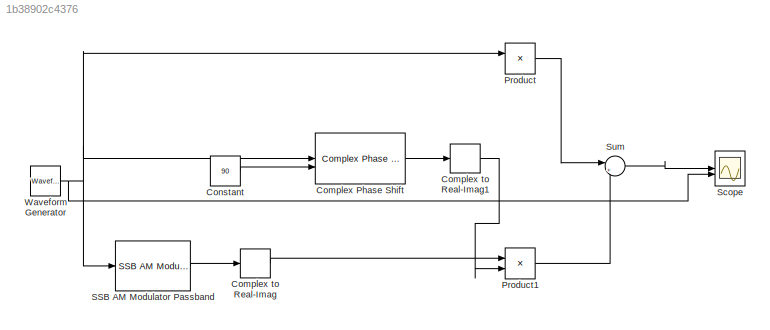
MODEL slx_1b38902c4376
KIND model
CONFIG AbsTol = auto
CONFIG EnableMultiTasking = off
CONFIG FixedStep = auto
CONFIG MaxStep = auto
CONFIG MinStep = auto
CONFIG RelTol = 1e-3
CONFIG SampleTimeConstraint = Unconstrained
CONFIG SolverName = VariableStepAuto
CONFIG StartTime = 0.0
CONFIG StopTime = 20
BLOCK [Reference] Complex Phase Shift  REF=commutil2/Complex Phase
Shift
  SourceBlock = commutil2/Complex Phase\nShift
  SourceType = Complex Phase Shift
BLOCK [ComplexToRealImag] Complex to Real-Imag
BLOCK [ComplexToRealImag] Complex to Real-Imag1
BLOCK [Constant] Constant
  Value = 90
BLOCK [Product] Product
BLOCK [Product] Product1
BLOCK [Reference] SSB AM Modulator Passband  REF=commanapbnd3/SSB AM
Modulator
Passband
  SourceBlock = commanapbnd3/SSB AM\nModulator\nPassband
  SourceType = SSB AM Modulator Passband
BLOCK [Scope] Scope
  Floating = off
  NumInputPorts = 2
  ScopeSpecificationString = Simulink.scopes.TimeScopeBlockCfg('CurrentConfiguration', extmgr.ConfigurationSet(extmgr.Configuration('Core','General UI',true),extmgr.Configuration('Core','Source UI',true),extmgr.Configuration('Sources','WiredSimulink',true),extmgr.Configuration('Visuals','Time Domain',true,'SerializedDisplays',{struct('MinYLimReal','-13.00404','MaxYLimReal','6.99996','YLabelReal','','MinYLimMag','0.00000','Max...<+1422ch>
BLOCK [Sum] Sum
  Inputs = |++
BLOCK [Reference] Waveform Generator  REF=simulink/Sources/Waveform
Generator
  SourceBlock = simulink/Sources/Waveform\nGenerator
  SourceType = WaveformGenerator
LINE Complex Phase Shift:1 -> Complex to Real-Imag1:1
LINE Complex to Real-Imag1:1 -> Product1:2
LINE Complex to Real-Imag:1 -> Product1:1
LINE Constant:1 -> Complex Phase Shift:2
LINE Product1:1 -> Sum:2
LINE Product:1 -> Sum:1
LINE SSB AM Modulator Passband:1 -> Complex to Real-Imag:1
LINE Sum:1 -> Scope:1
NET Waveform Generator:1 -> Complex Phase Shift:1, Product:1, SSB AM Modulator Passband:1, Scope:2
note: NET lines group one-source signal fan-out (src -> all destinations, sorted); 1:1 wires keep LINE
